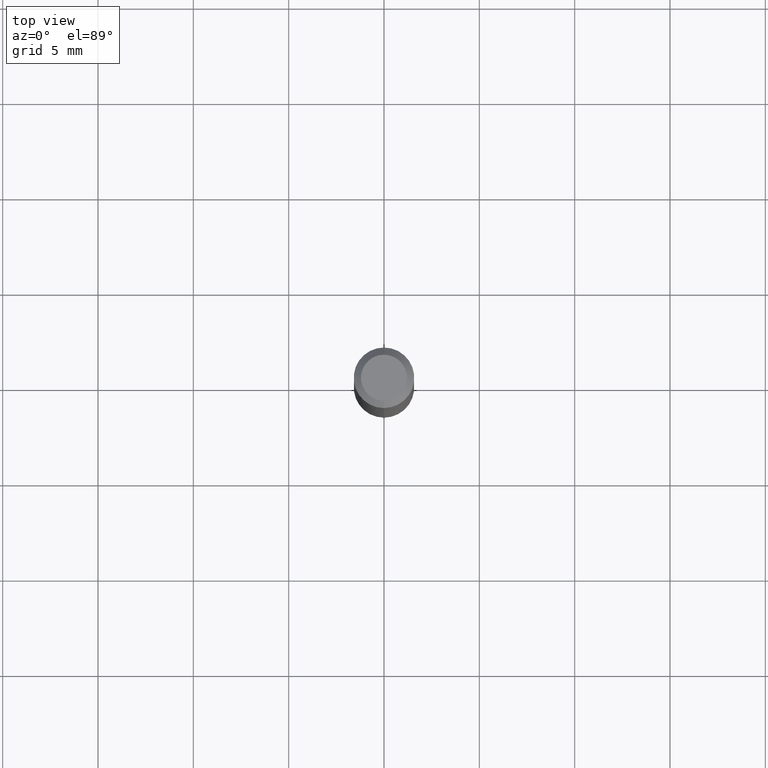
[diagram: clean part render]
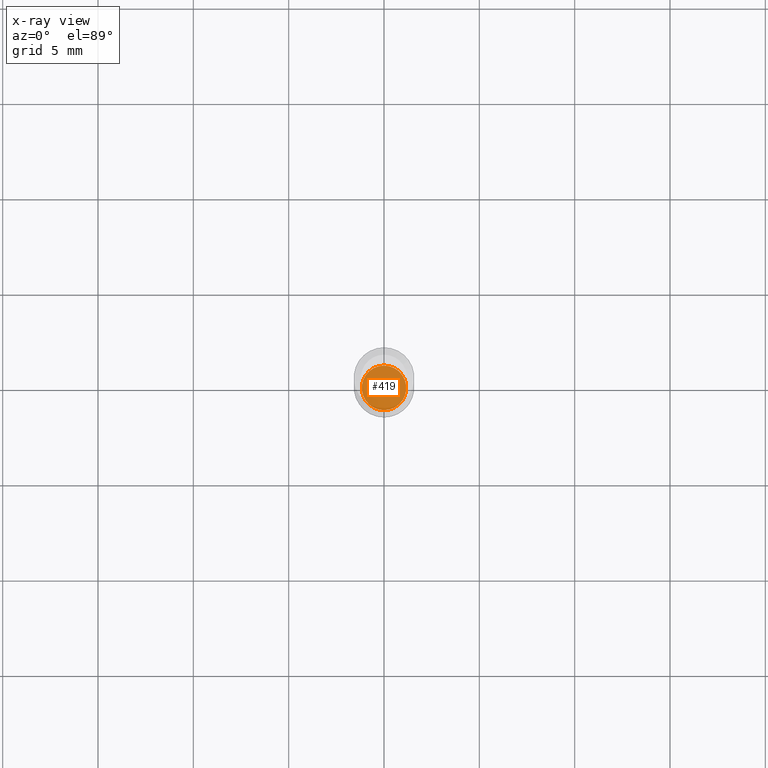
[diagram: x-ray — body ghosted, one internal face saturated and labeled with its STEP entity id]
A machine part, top view, then the same camera in x-ray: the body is ghosted and one INTERNAL B-rep face — a face not visible from any outside direction — is saturated and labeled: STEP entity #419.
In plain terms, the highlighted planar face has unit normal (-0, 0, 1).
Its self-contained STEP definition (entity closure, byte-faithful):
#77 = CIRCLE ( 'NONE', #362, 0.04599999999999999922 ) ;
#130 = CARTESIAN_POINT ( 'NONE',  ( 2.985849778842273332E-29, -4.263195569762945268E-15, -1.221000000000000085 ) ) ;
#132 = CARTESIAN_POINT ( 'NONE',  ( -3.212162831735383649E-16, -0.04600000000000425970, -1.221000000000000085 ) ) ;
#181 = DIRECTION ( 'NONE',  ( -6.982962677686265133E-15, -1.000000000000000000, 2.969399993113329585E-15 ) ) ;
#188 = DIRECTION ( 'NONE',  ( -2.445413414285235808E-29, 3.491560663196514639E-15, 1.000000000000000000 ) ) ;
#190 = CARTESIAN_POINT ( 'NONE',  ( 2.985849778842273332E-29, -4.263195569762945268E-15, -1.221000000000000085 ) ) ;
#208 = ORIENTED_EDGE ( 'NONE', *, *, #366, .F. ) ;
#255 = DIRECTION ( 'NONE',  ( -2.445413414285235808E-29, 3.491560663196514639E-15, 1.000000000000000000 ) ) ;
#259 = VERTEX_POINT ( 'NONE', #132 ) ;
#267 = DIRECTION ( 'NONE',  ( -6.982962677686265922E-15, -1.000000000000000000, 3.491560663196514639E-15 ) ) ;
#299 = CARTESIAN_POINT ( 'NONE',  ( 2.985849778842273332E-29, -4.263195569762945268E-15, -1.221000000000000085 ) ) ;
#317 = VERTEX_POINT ( 'NONE', #406 ) ;
#332 = DIRECTION ( 'NONE',  ( -6.982962677686265133E-15, -1.000000000000000000, 2.969399993113329585E-15 ) ) ;
#342 = FACE_OUTER_BOUND ( 'NONE', #376, .T. ) ;
#362 = AXIS2_PLACEMENT_3D ( 'NONE', #130, #255, #332 ) ;
#366 = EDGE_CURVE ( 'NONE', #259, #317, #77, .T. ) ;
#376 = EDGE_LOOP ( 'NONE', ( #208, #483 ) ) ;
#385 = DIRECTION ( 'NONE',  ( -2.445413414285235528E-29, 3.491560663196514639E-15, 1.000000000000000000 ) ) ;
#386 = PLANE ( 'NONE',  #436 ) ;
#406 = CARTESIAN_POINT ( 'NONE',  ( 3.286260152890763087E-16, 0.04599999999999573874, -1.221000000000000307 ) ) ;
#412 = AXIS2_PLACEMENT_3D ( 'NONE', #299, #188, #181 ) ;
#419 = ADVANCED_FACE ( 'NONE', ( #342 ), #386, .F. ) ;
#426 = EDGE_CURVE ( 'NONE', #317, #259, #487, .T. ) ;
#436 = AXIS2_PLACEMENT_3D ( 'NONE', #190, #385, #267 ) ;
#483 = ORIENTED_EDGE ( 'NONE', *, *, #426, .F. ) ;
#487 = CIRCLE ( 'NONE', #412, 0.04599999999999999922 ) ;